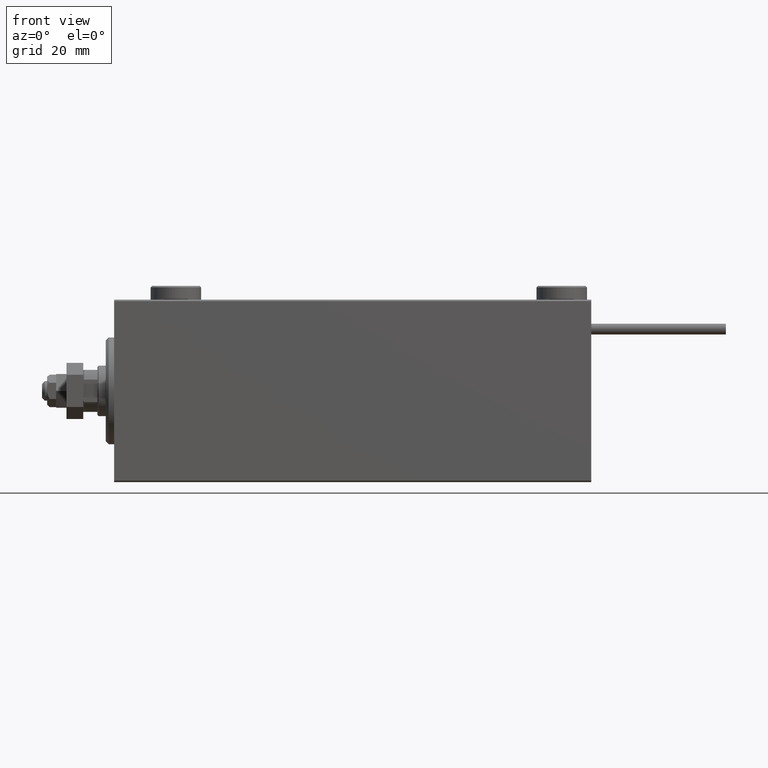
[diagram: clean part render]
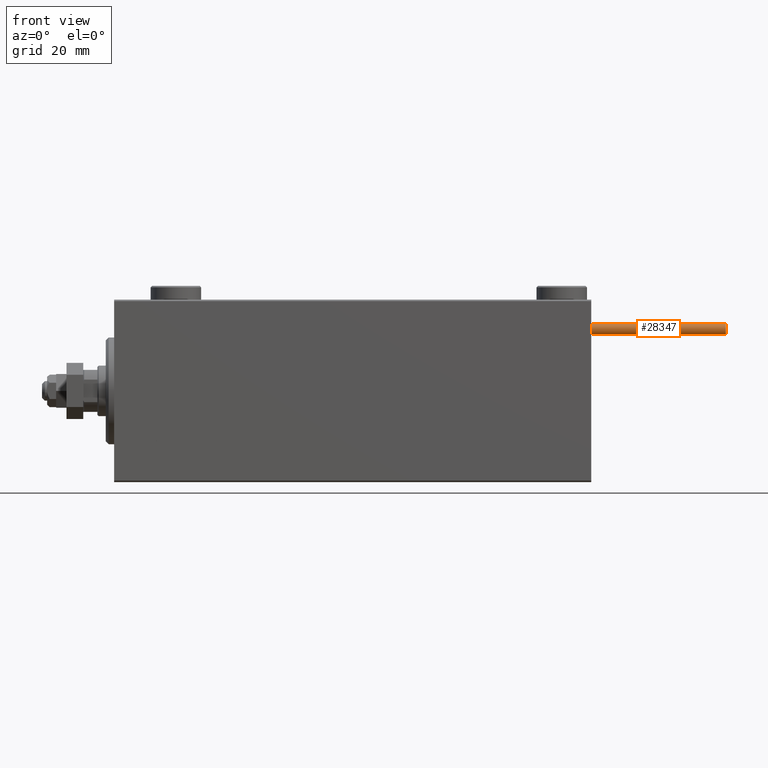
[diagram: same view with one face highlighted and labeled with its STEP entity id]
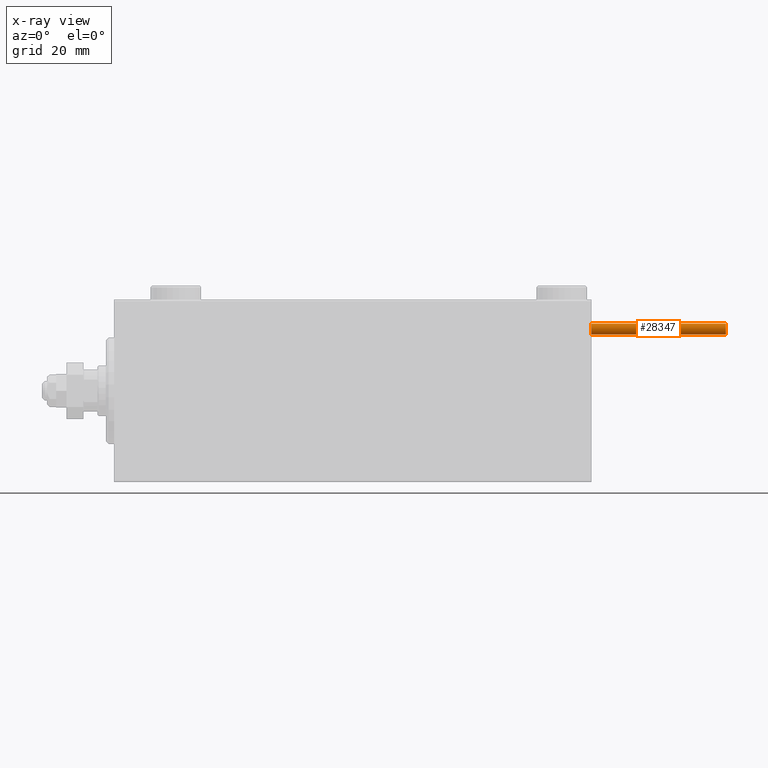
[diagram: x-ray of the same camera — body ghosted, the highlighted face saturated]
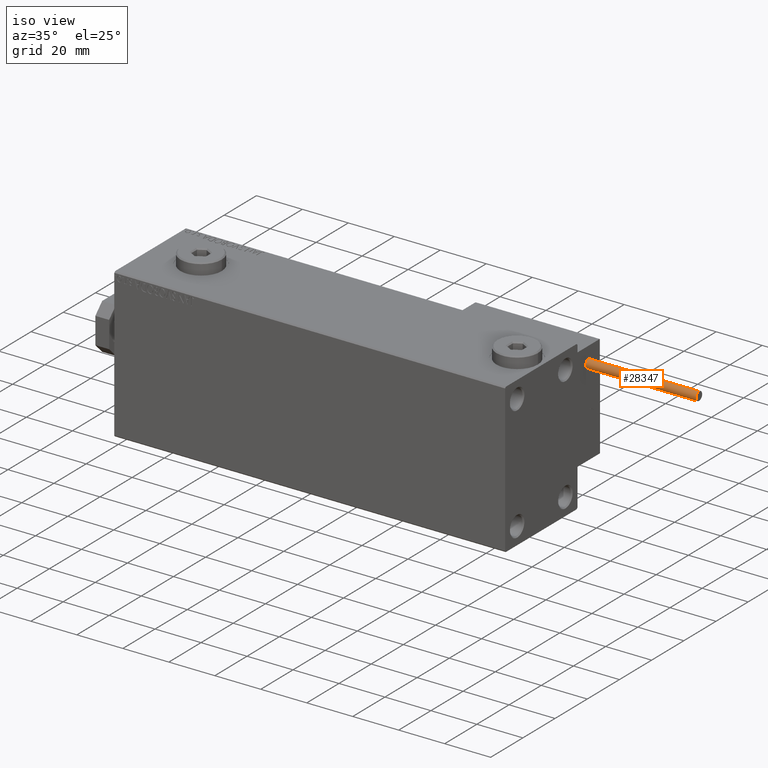
[diagram: same view with one face highlighted and labeled with its STEP entity id]
A machine part, front view. The second image highlights one B-rep face of the part: STEP entity #28347.
The next image is the same camera in x-ray: the body ghosted, the highlighted face saturated — about 0% of this face is hidden behind the body in this view.
A second angle (iso view) of the same face is appended — the face is thin or edge-on in the first view.
In plain terms, the highlighted cylindrical surface (edge-blend (fillet) strip) has radius 1.9 mm, axis along (-1, -0, -0).
Its self-contained STEP definition (entity closure, byte-faithful):
#3935 = CARTESIAN_POINT ( 'NONE',  ( 1.899999999999999467, 2.326828918379970872E-16, 48.00000000000000000 ) ) ;
#3976 = ORIENTED_EDGE ( 'NONE', *, *, #14010, .F. ) ;
#4002 = AXIS2_PLACEMENT_3D ( 'NONE', #7235, #38871, #46612 ) ;
#6025 = ORIENTED_EDGE ( 'NONE', *, *, #21143, .T. ) ;
#7235 = CARTESIAN_POINT ( 'NONE',  ( 0.000000000000000000, 0.000000000000000000, 48.00000000000000000 ) ) ;
#7407 = VERTEX_POINT ( 'NONE', #39601 ) ;
#8080 = CARTESIAN_POINT ( 'NONE',  ( -1.899999999999999467, 0.000000000000000000, 0.000000000000000000 ) ) ;
#8298 = CIRCLE ( 'NONE', #14283, 1.899999999999999467 ) ;
#8911 = DIRECTION ( 'NONE',  ( 0.000000000000000000, 0.000000000000000000, 1.000000000000000000 ) ) ;
#13668 = ORIENTED_EDGE ( 'NONE', *, *, #17475, .F. ) ;
#13771 = CARTESIAN_POINT ( 'NONE',  ( 0.000000000000000000, 0.000000000000000000, 48.00000000000000000 ) ) ;
#14010 = EDGE_CURVE ( 'NONE', #7407, #34541, #40348, .T. ) ;
#14283 = AXIS2_PLACEMENT_3D ( 'NONE', #16104, #8911, #20638 ) ;
#14777 = CARTESIAN_POINT ( 'NONE',  ( -1.899999999999999467, 0.000000000000000000, 48.00000000000000000 ) ) ;
#16104 = CARTESIAN_POINT ( 'NONE',  ( 0.000000000000000000, 0.000000000000000000, 0.000000000000000000 ) ) ;
#17400 = AXIS2_PLACEMENT_3D ( 'NONE', #13771, #26000, #37416 ) ;
#17475 = EDGE_CURVE ( 'NONE', #28511, #7407, #43898, .T. ) ;
#19051 = EDGE_LOOP ( 'NONE', ( #3976, #13668, #6025, #23183 ) ) ;
#20168 = DIRECTION ( 'NONE',  ( -0.000000000000000000, -0.000000000000000000, -1.000000000000000000 ) ) ;
#20638 = DIRECTION ( 'NONE',  ( 1.000000000000000000, 0.000000000000000000, 0.000000000000000000 ) ) ;
#21143 = EDGE_CURVE ( 'NONE', #28511, #21333, #27019, .T. ) ;
#21219 = CYLINDRICAL_SURFACE ( 'NONE', #17400, 1.899999999999999467 ) ;
#21333 = VERTEX_POINT ( 'NONE', #8080 ) ;
#22713 = EDGE_CURVE ( 'NONE', #21333, #34541, #8298, .T. ) ;
#23183 = ORIENTED_EDGE ( 'NONE', *, *, #22713, .T. ) ;
#23586 = VECTOR ( 'NONE', #34452, 1000.000000000000000 ) ;
#25105 = CARTESIAN_POINT ( 'NONE',  ( 1.899999999999999467, 2.326828918379970872E-16, 0.000000000000000000 ) ) ;
#26000 = DIRECTION ( 'NONE',  ( -0.000000000000000000, -0.000000000000000000, -1.000000000000000000 ) ) ;
#27019 = LINE ( 'NONE', #14777, #23586 ) ;
#28347 = ADVANCED_FACE ( 'NONE', ( #50178 ), #21219, .T. ) ;
#28511 = VERTEX_POINT ( 'NONE', #50361 ) ;
#32753 = VECTOR ( 'NONE', #20168, 1000.000000000000000 ) ;
#34452 = DIRECTION ( 'NONE',  ( -0.000000000000000000, -0.000000000000000000, -1.000000000000000000 ) ) ;
#34541 = VERTEX_POINT ( 'NONE', #25105 ) ;
#37416 = DIRECTION ( 'NONE',  ( -1.000000000000000000, 0.000000000000000000, 0.000000000000000000 ) ) ;
#38871 = DIRECTION ( 'NONE',  ( 0.000000000000000000, 0.000000000000000000, 1.000000000000000000 ) ) ;
#39601 = CARTESIAN_POINT ( 'NONE',  ( 1.899999999999999467, 2.326828918379970872E-16, 48.00000000000000000 ) ) ;
#40348 = LINE ( 'NONE', #3935, #32753 ) ;
#43898 = CIRCLE ( 'NONE', #4002, 1.899999999999999467 ) ;
#46612 = DIRECTION ( 'NONE',  ( 1.000000000000000000, 0.000000000000000000, 0.000000000000000000 ) ) ;
#50178 = FACE_OUTER_BOUND ( 'NONE', #19051, .T. ) ;
#50361 = CARTESIAN_POINT ( 'NONE',  ( -1.899999999999999467, 0.000000000000000000, 48.00000000000000000 ) ) ;